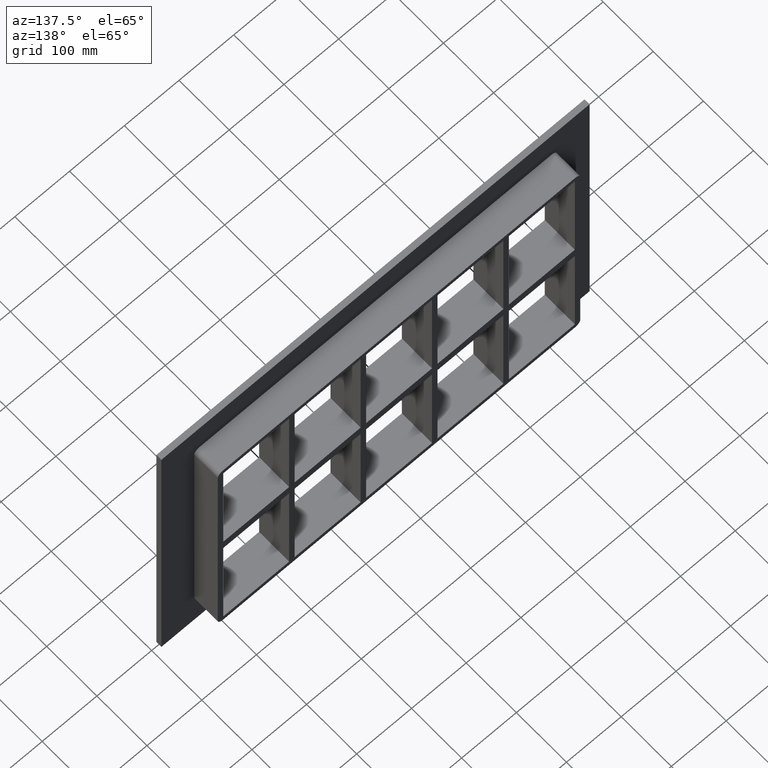
[diagram: clean part render]
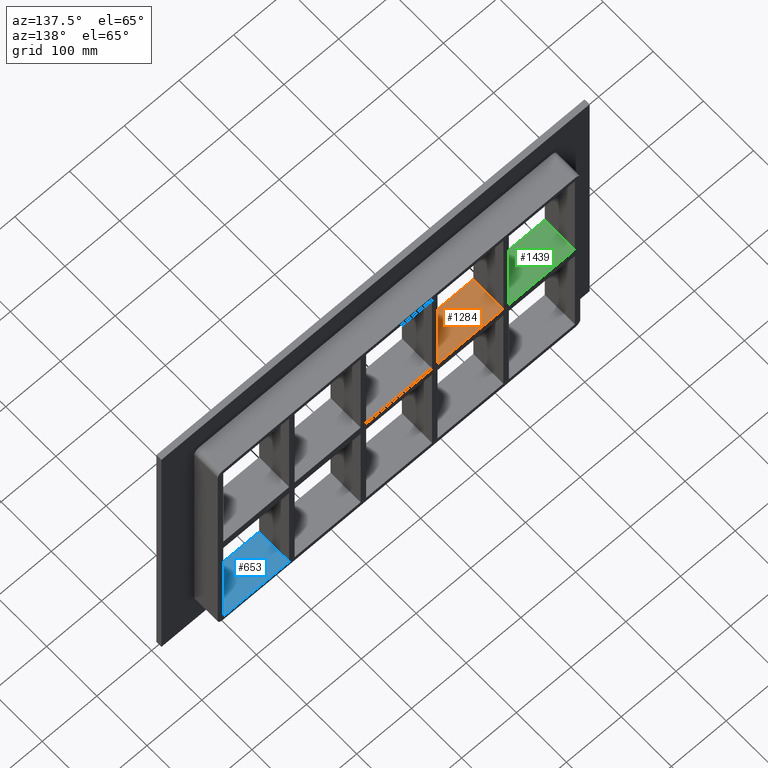
[diagram: same view with three faces highlighted in distinct colors, each labeled with its STEP entity id]
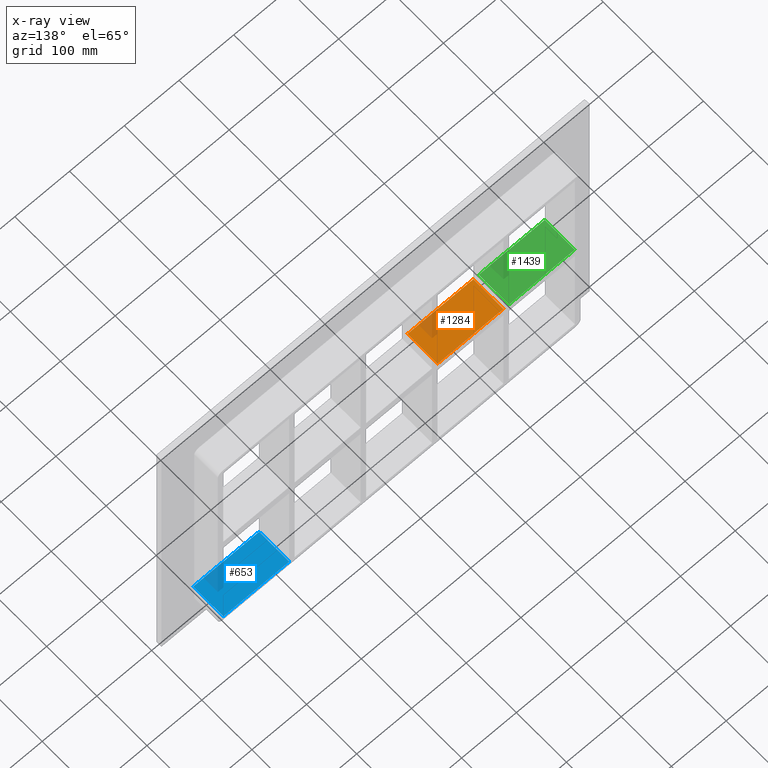
[diagram: x-ray of the same camera — body ghosted, the three highlighted faces saturated]
A machine part, auxiliary view with three faces highlighted in distinct colors.
The next image is the same camera in x-ray (body ghosted, the three faces saturated) — at least one of them is partly hidden behind the body in this view.
Their STEP definitions:

[orange] entity #1284 — the highlighted planar face has unit normal (0, 0, 1).
#393=CARTESIAN_POINT('',(-70.250000000001336,-3.0,10.0));
#394=VERTEX_POINT('',#393);
#395=CARTESIAN_POINT('',(-70.250000000001336,57.0,10.0));
#396=VERTEX_POINT('',#395);
#397=CARTESIAN_POINT('',(-70.250000000001322,-3.0,10.0));
#398=DIRECTION('',(0.0,1.0,0.0));
#399=VECTOR('',#398,60.0);
#400=LINE('',#397,#399);
#401=EDGE_CURVE('',#394,#396,#400,.T.);
#801=CARTESIAN_POINT('',(-190.75000000000728,-3.0,10.0));
#802=VERTEX_POINT('',#801);
#803=CARTESIAN_POINT('',(-190.75000000000728,-3.0,10.0));
#804=DIRECTION('',(1.0,0.0,0.0));
#805=VECTOR('',#804,120.50000000000591);
#806=LINE('',#803,#805);
#807=EDGE_CURVE('',#802,#394,#806,.T.);
#1251=CARTESIAN_POINT('',(-190.75000000000728,57.0,10.0));
#1252=VERTEX_POINT('',#1251);
#1259=CARTESIAN_POINT('',(-190.75000000000728,57.0,10.0));
#1260=DIRECTION('',(1.0,0.0,0.0));
#1261=VECTOR('',#1260,120.50000000000591);
#1262=LINE('',#1259,#1261);
#1263=EDGE_CURVE('',#1252,#396,#1262,.T.);
#1268=CARTESIAN_POINT('',(-321.24999999999966,-3.0,10.0));
#1269=DIRECTION('',(0.0,0.0,1.0));
#1270=DIRECTION('',(1.0,0.0,0.0));
#1271=AXIS2_PLACEMENT_3D('',#1268,#1269,#1270);
#1272=PLANE('',#1271);
#1273=ORIENTED_EDGE('',*,*,#401,.T.);
#1274=ORIENTED_EDGE('',*,*,#1263,.F.);
#1275=CARTESIAN_POINT('',(-190.75000000000728,-3.0,10.0));
#1276=DIRECTION('',(0.0,1.0,0.0));
#1277=VECTOR('',#1276,60.0);
#1278=LINE('',#1275,#1277);
#1279=EDGE_CURVE('',#802,#1252,#1278,.T.);
#1280=ORIENTED_EDGE('',*,*,#1279,.F.);
#1281=ORIENTED_EDGE('',*,*,#807,.T.);
#1282=EDGE_LOOP('',(#1273,#1274,#1280,#1281));
#1283=FACE_OUTER_BOUND('',#1282,.T.);
#1284=ADVANCED_FACE('',(#1283),#1272,.T.);

[blue] entity #653 — the highlighted planar face has unit normal (0, 0, -1).
#203=CARTESIAN_POINT('',(200.74999999999278,-3.0,-227.99999999998403));
#204=VERTEX_POINT('',#203);
#211=CARTESIAN_POINT('',(200.74999999999278,57.0,-227.99999999998406));
#212=VERTEX_POINT('',#211);
#213=CARTESIAN_POINT('',(200.74999999999278,57.000000000000007,-227.99999999999997));
#214=DIRECTION('',(0.0,-1.0,0.0));
#215=VECTOR('',#214,60.000000000000007);
#216=LINE('',#213,#215);
#217=EDGE_CURVE('',#212,#204,#216,.T.);
#623=CARTESIAN_POINT('',(321.25,0.0,-227.99999999999997));
#624=DIRECTION('',(0.0,0.0,-1.0));
#625=DIRECTION('',(-1.0,0.0,0.0));
#626=AXIS2_PLACEMENT_3D('',#623,#624,#625);
#627=PLANE('',#626);
#628=ORIENTED_EDGE('',*,*,#217,.T.);
#629=CARTESIAN_POINT('',(321.25,-3.0,-227.99999999999997));
#630=VERTEX_POINT('',#629);
#631=CARTESIAN_POINT('',(321.25,-3.0,-227.99999999999997));
#632=DIRECTION('',(-1.0,0.0,0.0));
#633=VECTOR('',#632,120.50000000000722);
#634=LINE('',#631,#633);
#635=EDGE_CURVE('',#630,#204,#634,.T.);
#636=ORIENTED_EDGE('',*,*,#635,.F.);
#637=CARTESIAN_POINT('',(321.25,57.0,-227.99999999999997));
#638=VERTEX_POINT('',#637);
#639=CARTESIAN_POINT('',(321.25,57.0,-227.99999999999997));
#640=DIRECTION('',(0.0,-1.0,0.0));
#641=VECTOR('',#640,60.0);
#642=LINE('',#639,#641);
#643=EDGE_CURVE('',#638,#630,#642,.T.);
#644=ORIENTED_EDGE('',*,*,#643,.F.);
#645=CARTESIAN_POINT('',(200.74999999999278,57.0,-227.99999999999997));
#646=DIRECTION('',(1.0,0.0,0.0));
#647=VECTOR('',#646,120.50000000000722);
#648=LINE('',#645,#647);
#649=EDGE_CURVE('',#212,#638,#648,.T.);
#650=ORIENTED_EDGE('',*,*,#649,.F.);
#651=EDGE_LOOP('',(#628,#636,#644,#650));
#652=FACE_OUTER_BOUND('',#651,.T.);
#653=ADVANCED_FACE('',(#652),#627,.F.);

[green] entity #1439 — the highlighted planar face has unit normal (0, 0, 1).
#869=CARTESIAN_POINT('',(-321.24999999999966,-3.0,10.0));
#870=VERTEX_POINT('',#869);
#887=CARTESIAN_POINT('',(-200.75000000000134,-3.0,10.0));
#888=VERTEX_POINT('',#887);
#895=CARTESIAN_POINT('',(-321.24999999999966,-3.0,10.0));
#896=DIRECTION('',(1.0,0.0,0.0));
#897=VECTOR('',#896,120.49999999999829);
#898=LINE('',#895,#897);
#899=EDGE_CURVE('',#870,#888,#898,.T.);
#1174=CARTESIAN_POINT('',(-321.24999999999966,57.0,10.0));
#1175=VERTEX_POINT('',#1174);
#1176=CARTESIAN_POINT('',(-200.75000000000134,57.0,10.0));
#1177=VERTEX_POINT('',#1176);
#1178=CARTESIAN_POINT('',(-321.24999999999966,57.0,10.0));
#1179=DIRECTION('',(1.0,0.0,0.0));
#1180=VECTOR('',#1179,120.49999999999829);
#1181=LINE('',#1178,#1180);
#1182=EDGE_CURVE('',#1175,#1177,#1181,.T.);
#1418=CARTESIAN_POINT('',(-321.24999999999966,-3.0,10.0));
#1419=DIRECTION('',(0.0,0.0,1.0));
#1420=DIRECTION('',(1.0,0.0,0.0));
#1421=AXIS2_PLACEMENT_3D('',#1418,#1419,#1420);
#1422=PLANE('',#1421);
#1423=CARTESIAN_POINT('',(-200.75000000000134,57.0,10.0));
#1424=DIRECTION('',(0.0,-1.0,0.0));
#1425=VECTOR('',#1424,60.0);
#1426=LINE('',#1423,#1425);
#1427=EDGE_CURVE('',#1177,#888,#1426,.T.);
#1428=ORIENTED_EDGE('',*,*,#1427,.F.);
#1429=ORIENTED_EDGE('',*,*,#1182,.F.);
#1430=CARTESIAN_POINT('',(-321.25,-3.0,10.0));
#1431=DIRECTION('',(0.0,1.0,0.0));
#1432=VECTOR('',#1431,60.000000000000007);
#1433=LINE('',#1430,#1432);
#1434=EDGE_CURVE('',#870,#1175,#1433,.T.);
#1435=ORIENTED_EDGE('',*,*,#1434,.F.);
#1436=ORIENTED_EDGE('',*,*,#899,.T.);
#1437=EDGE_LOOP('',(#1428,#1429,#1435,#1436));
#1438=FACE_OUTER_BOUND('',#1437,.T.);
#1439=ADVANCED_FACE('',(#1438),#1422,.T.);